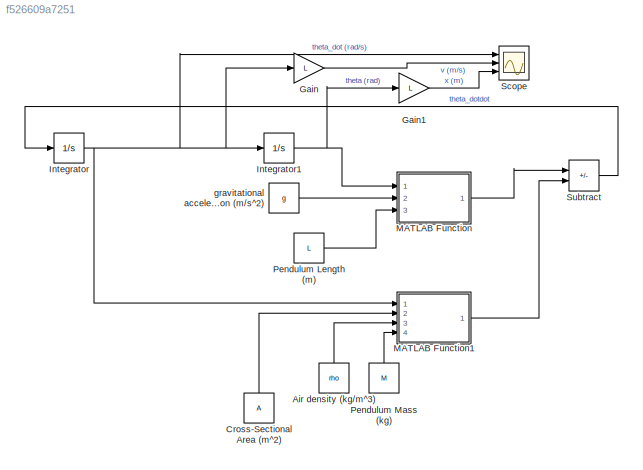
MODEL slx_f526609a7251
KIND model
CONFIG AbsTol = auto
CONFIG EnableMultiTasking = off
CONFIG FixedStep = auto
CONFIG MaxStep = auto
CONFIG MinStep = auto
CONFIG RelTol = 1e-3
CONFIG SampleTimeConstraint = Unconstrained
CONFIG SolverName = VariableStepAuto
CONFIG StartTime = 0.0
CONFIG StopTime = 10.0
WORKSPACE source: mxarray member
WORKSPACE A = 0.01
WORKSPACE L = 1
WORKSPACE M = 1
BLOCK [Constant] Air density (kg//m^3)
  Value = rho
BLOCK [Constant] Cross-Sectional Area (m^2)
  Value = A
BLOCK [Gain] Gain
  Gain = L
BLOCK [Gain] Gain1
  Gain = L
BLOCK [Integrator] Integrator
  Ports = [1, 1]
BLOCK [Integrator] Integrator1
  InitialCondition = .14
  Ports = [1, 1]
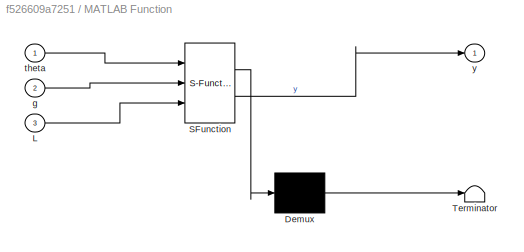
BLOCK [SubSystem] MATLAB Function
  ErrorFcn = Stateflow.Translate.translate
  PermitHierarchicalResolution = ExplicitOnly
  Ports = [3, 1]
  RequestExecContextInheritance = off
  SFBlockType = MATLAB Function
  TreatAsAtomicUnit = on
BLOCK [Demux] MATLAB Function/ Demux 
  Outputs = 1
  Ports = [1, 1]
BLOCK [S-Function] MATLAB Function/ SFunction 
  EnableBusSupport = on
  FunctionName = sf_sfun
  PortCounts = [3 2]
  Ports = [3, 2]
  SFcnIsStateOwnerBlock = off
  SFunctionDeploymentMode = off
  Tag = Stateflow S-Function 2
BLOCK [Terminator] MATLAB Function/ Terminator 
BLOCK [Inport] MATLAB Function/L
  Port = 3
BLOCK [Inport] MATLAB Function/g
  Port = 2
BLOCK [Inport] MATLAB Function/theta
BLOCK [Outport] MATLAB Function/y
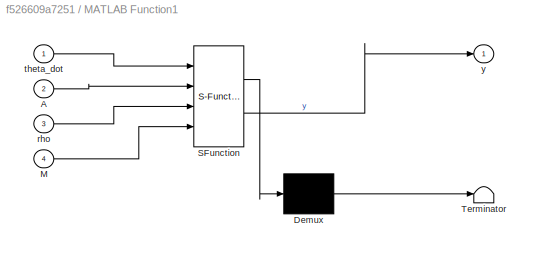
BLOCK [SubSystem] MATLAB Function1
  ErrorFcn = Stateflow.Translate.translate
  PermitHierarchicalResolution = ExplicitOnly
  Ports = [4, 1]
  RequestExecContextInheritance = off
  SFBlockType = MATLAB Function
  TreatAsAtomicUnit = on
BLOCK [Demux] MATLAB Function1/ Demux 
  Outputs = 1
  Ports = [1, 1]
BLOCK [S-Function] MATLAB Function1/ SFunction 
  EnableBusSupport = on
  FunctionName = sf_sfun
  PortCounts = [4 2]
  Ports = [4, 2]
  SFcnIsStateOwnerBlock = off
  SFunctionDeploymentMode = off
  Tag = Stateflow S-Function 1
BLOCK [Terminator] MATLAB Function1/ Terminator 
BLOCK [Inport] MATLAB Function1/A
  Port = 2
BLOCK [Inport] MATLAB Function1/M
  Port = 4
BLOCK [Inport] MATLAB Function1/rho
  Port = 3
BLOCK [Inport] MATLAB Function1/theta_dot
BLOCK [Outport] MATLAB Function1/y
BLOCK [Constant] Pendulum Length (m)
  Value = L
BLOCK [Constant] Pendulum Mass (kg)
  NameLocation = right
  Value = M
BLOCK [Scope] Scope
  Floating = off
  NumInputPorts = 3
  Ports = [3]
  ScopeSpecificationString = Simulink.scopes.TimeScopeBlockCfg('CurrentConfiguration', extmgr.ConfigurationSet(extmgr.Configuration('Core','General UI',true),extmgr.Configuration('Core','Source UI',true),extmgr.Configuration('Sources','WiredSimulink',true),extmgr.Configuration('Visuals','Time Domain',true,'SerializedDisplays',{struct('MinYLimReal','-7.69504','MaxYLimReal','7.76907','YLabelReal','','MinYLimMag','0.00000','MaxY...<+1436ch>
BLOCK [Sum] Subtract
  IconShape = rectangular
  Inputs = +-
  Ports = [2, 1]
BLOCK [Constant] gravitational acceleration (m//s^2)
  Value = g
LINE Air density (kg//m^3):1 -> MATLAB Function1:3
LINE Cross-Sectional Area (m^2):1 -> MATLAB Function1:2
LINE Gain1:1 -> Scope:3
LINE Gain:1 -> Scope:2
NET Integrator1:1 -> Gain1:1, MATLAB Function:1
NET Integrator:1 -> Gain:1, Integrator1:1, MATLAB Function1:1, Scope:1
LINE MATLAB Function1:1 -> Subtract:2
LINE MATLAB Function:1 -> Subtract:1
LINE Pendulum Length (m):1 -> MATLAB Function:3
LINE Pendulum Mass (kg):1 -> MATLAB Function1:4
LINE Subtract:1 -> Integrator:1
LINE gravitational acceleration (m//s^2):1 -> MATLAB Function:2
note: NET lines group one-source signal fan-out (src -> all destinations, sorted); 1:1 wires keep LINE
CHART MATLAB Function1 states=1 transitions=1
  STATE_LABEL 'eML_blk_kernel()'
  STATE_LABEL 'SCRIPT:\nfunction y = fcn(theta_dot, A, rho, M)\n\ny = (0.5 * rho * A* theta_dot)/(M);\n'
CHART MATLAB Function states=1 transitions=1
  STATE_LABEL 'eML_blk_kernel()'
  STATE_LABEL 'SCRIPT:\nfunction y = fcn(theta, g, L)\n\ny = (g / L) * sin(theta);\n'
CHART  states=0 transitions=0
CHART  states=0 transitions=0
